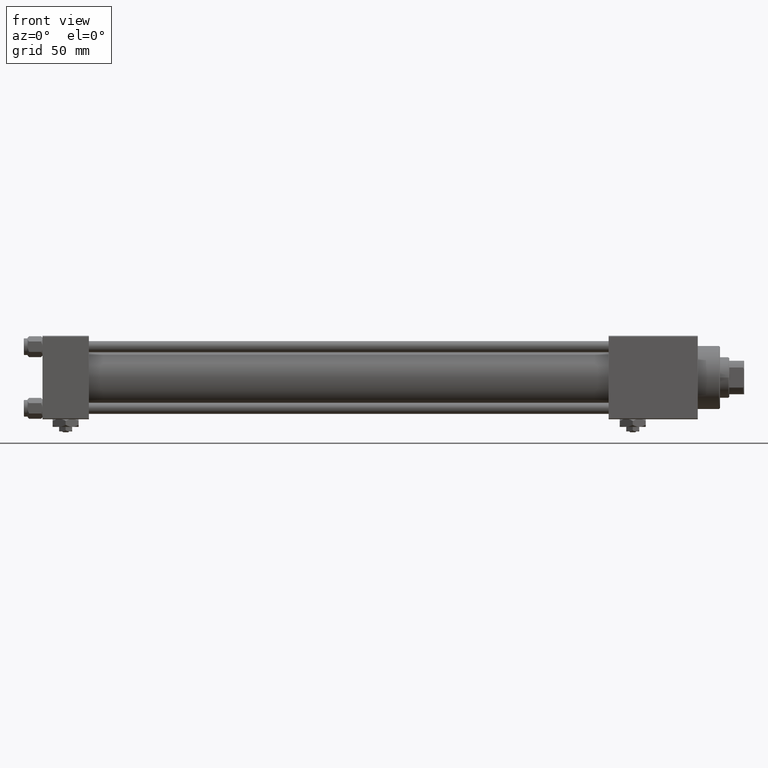
[diagram: clean part render]
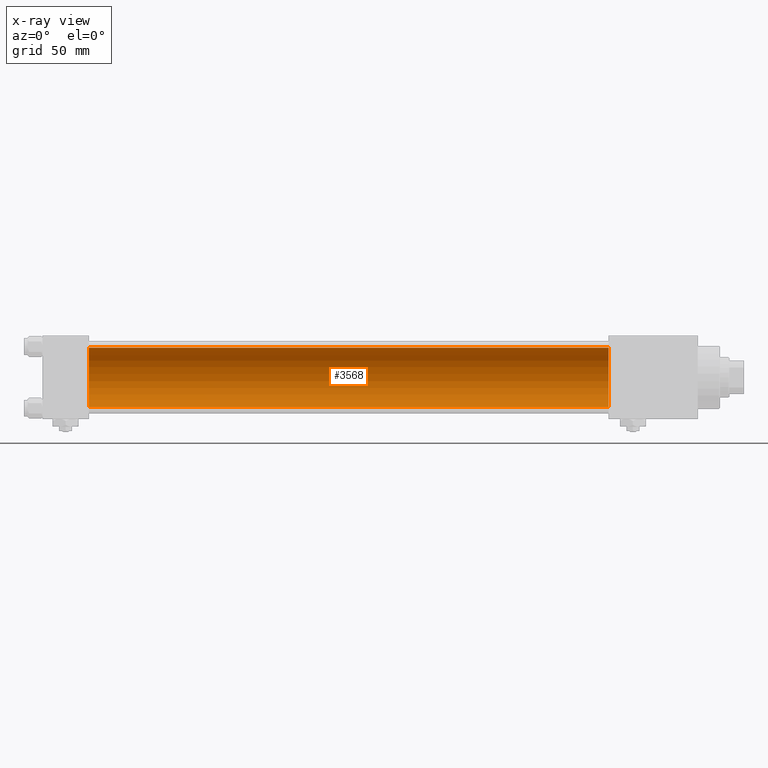
[diagram: x-ray — body ghosted, one internal face saturated and labeled with its STEP entity id]
A machine part, front view, then the same camera in x-ray: the body is ghosted and one INTERNAL B-rep face — a face not visible from any outside direction — is saturated and labeled: STEP entity #3568.
In plain terms, the highlighted cylindrical surface (edge-blend (fillet) strip) has radius 16 mm, axis along (-1, -0, -0).
Its self-contained STEP definition (entity closure, byte-faithful):
#51 = VERTEX_POINT ( 'NONE', #25264 ) ;
#1393 = VERTEX_POINT ( 'NONE', #46886 ) ;
#2363 = CARTESIAN_POINT ( 'NONE',  ( 305.0000000000000568, -6.426503353294456087E-16, -16.00000000000000000 ) ) ;
#2754 = ORIENTED_EDGE ( 'NONE', *, *, #25425, .T. ) ;
#3568 = ADVANCED_FACE ( 'NONE', ( #41649 ), #21060, .F. ) ;
#3834 = VECTOR ( 'NONE', #17793, 1000.000000000000000 ) ;
#4839 = DIRECTION ( 'NONE',  ( 0.000000000000000000, 0.000000000000000000, 1.000000000000000000 ) ) ;
#6015 = ORIENTED_EDGE ( 'NONE', *, *, #18538, .F. ) ;
#8505 = VERTEX_POINT ( 'NONE', #25458 ) ;
#8883 = CARTESIAN_POINT ( 'NONE',  ( 305.0000000000000568, -2.602085213965210642E-15, 0.000000000000000000 ) ) ;
#9979 = CARTESIAN_POINT ( 'NONE',  ( 305.0000000000000568, -6.426503353294456087E-16, -16.00000000000000000 ) ) ;
#10188 = DIRECTION ( 'NONE',  ( 1.000000000000000000, 0.000000000000000000, 0.000000000000000000 ) ) ;
#10783 = DIRECTION ( 'NONE',  ( 1.000000000000000000, 0.000000000000000000, 0.000000000000000000 ) ) ;
#11022 = EDGE_LOOP ( 'NONE', ( #6015, #2754, #39325, #24661 ) ) ;
#12462 = CARTESIAN_POINT ( 'NONE',  ( 305.0000000000000568, -2.602085213965210642E-15, 16.00000000000000000 ) ) ;
#13716 = DIRECTION ( 'NONE',  ( 0.000000000000000000, 0.000000000000000000, -1.000000000000000000 ) ) ;
#15113 = AXIS2_PLACEMENT_3D ( 'NONE', #47284, #10188, #13716 ) ;
#17793 = DIRECTION ( 'NONE',  ( -1.000000000000000000, -0.000000000000000000, -0.000000000000000000 ) ) ;
#18538 = EDGE_CURVE ( 'NONE', #34007, #8505, #26966, .T. ) ;
#19158 = CARTESIAN_POINT ( 'NONE',  ( 305.0000000000000568, -2.602085213965210642E-15, 0.000000000000000000 ) ) ;
#21060 = CYLINDRICAL_SURFACE ( 'NONE', #22403, 16.00000000000000000 ) ;
#22403 = AXIS2_PLACEMENT_3D ( 'NONE', #8883, #25382, #4839 ) ;
#24661 = ORIENTED_EDGE ( 'NONE', *, *, #38763, .F. ) ;
#25161 = LINE ( 'NONE', #12462, #50801 ) ;
#25264 = CARTESIAN_POINT ( 'NONE',  ( 25.00000000000000000, -2.602085213965210642E-15, 16.00000000000000000 ) ) ;
#25382 = DIRECTION ( 'NONE',  ( -1.000000000000000000, -0.000000000000000000, -0.000000000000000000 ) ) ;
#25425 = EDGE_CURVE ( 'NONE', #34007, #1393, #51924, .T. ) ;
#25458 = CARTESIAN_POINT ( 'NONE',  ( 25.00000000000000000, -6.426503353294456087E-16, -16.00000000000000000 ) ) ;
#26966 = LINE ( 'NONE', #2363, #3834 ) ;
#28567 = AXIS2_PLACEMENT_3D ( 'NONE', #19158, #10783, #43813 ) ;
#34007 = VERTEX_POINT ( 'NONE', #9979 ) ;
#38763 = EDGE_CURVE ( 'NONE', #8505, #51, #41977, .T. ) ;
#39325 = ORIENTED_EDGE ( 'NONE', *, *, #43404, .T. ) ;
#41172 = DIRECTION ( 'NONE',  ( -1.000000000000000000, -0.000000000000000000, -0.000000000000000000 ) ) ;
#41649 = FACE_OUTER_BOUND ( 'NONE', #11022, .T. ) ;
#41977 = CIRCLE ( 'NONE', #15113, 16.00000000000000000 ) ;
#43404 = EDGE_CURVE ( 'NONE', #1393, #51, #25161, .T. ) ;
#43813 = DIRECTION ( 'NONE',  ( 0.000000000000000000, 0.000000000000000000, -1.000000000000000000 ) ) ;
#46886 = CARTESIAN_POINT ( 'NONE',  ( 305.0000000000000568, -2.602085213965210642E-15, 16.00000000000000000 ) ) ;
#47284 = CARTESIAN_POINT ( 'NONE',  ( 25.00000000000000000, -2.602085213965210642E-15, 0.000000000000000000 ) ) ;
#50801 = VECTOR ( 'NONE', #41172, 1000.000000000000000 ) ;
#51924 = CIRCLE ( 'NONE', #28567, 16.00000000000000000 ) ;